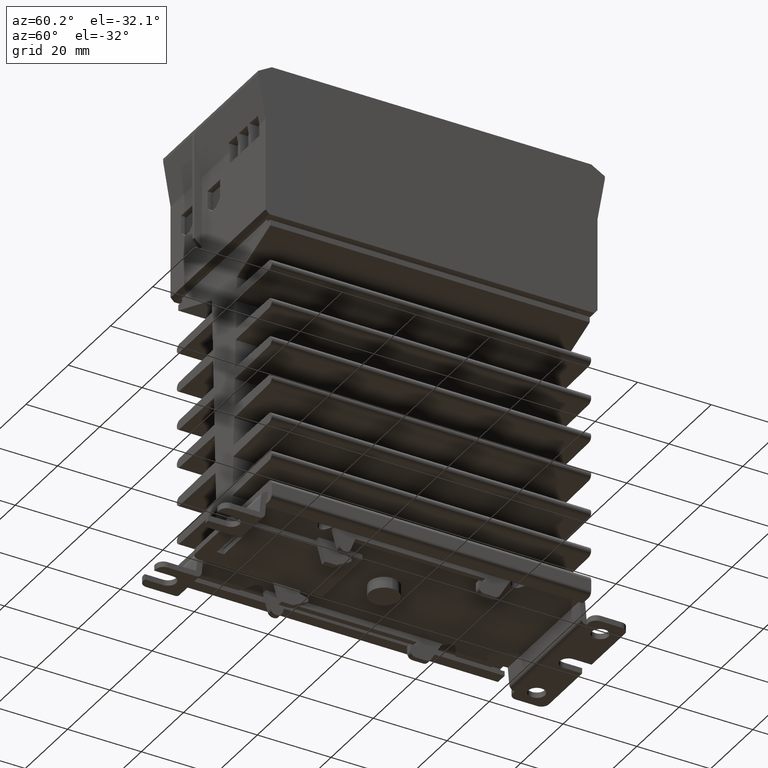
[diagram: clean part render]
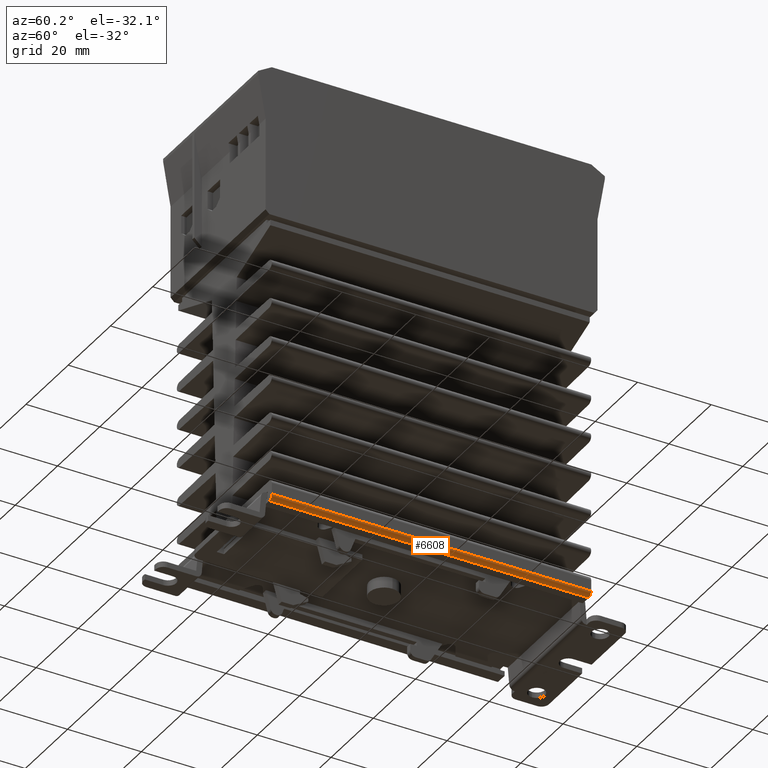
[diagram: same view with one face highlighted and labeled with its STEP entity id]
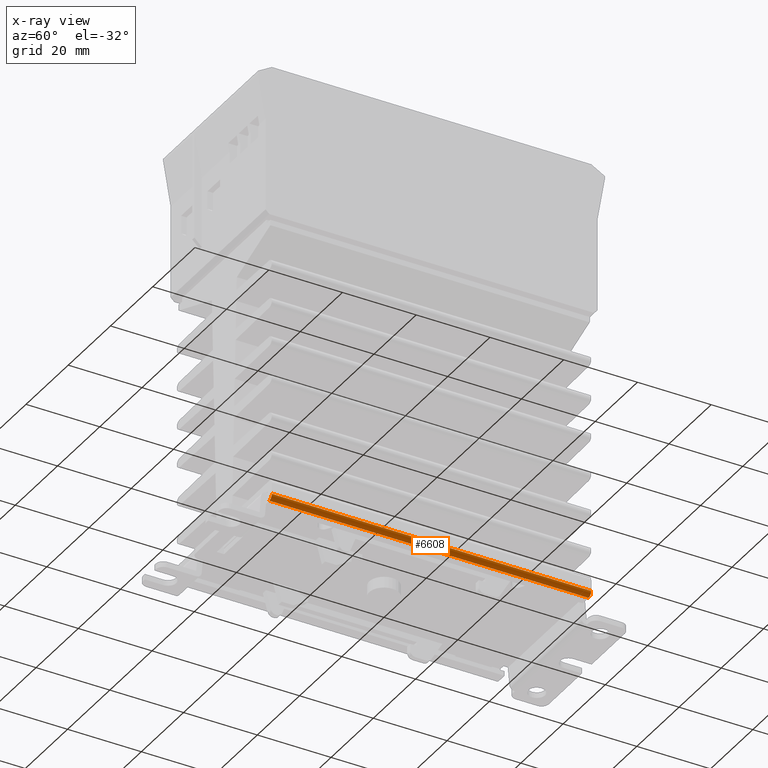
[diagram: x-ray of the same camera — body ghosted, the highlighted face saturated]
A machine part, auxiliary view. The second image highlights one B-rep face of the part: STEP entity #6608.
The next image is the same camera in x-ray: the body ghosted, the highlighted face saturated — about 0% of this face is hidden behind the body in this view.
In plain terms, the highlighted cylindrical surface (edge-blend (fillet) strip) has radius 1.25 mm, axis along (0, 1, 0).
Its self-contained STEP definition (entity closure, byte-faithful):
#17 = CYLINDRICAL_SURFACE ( 'NONE', #4493, 0.04921259842519689481 ) ;
#315 = ORIENTED_EDGE ( 'NONE', *, *, #9833, .F. ) ;
#632 = DIRECTION ( 'NONE',  ( -0.000000000000000000, -1.000000000000000000, -0.000000000000000000 ) ) ;
#1132 = EDGE_CURVE ( 'NONE', #5484, #4830, #7480, .T. ) ;
#2302 = CARTESIAN_POINT ( 'NONE',  ( 0.8366141732283465249, -1.704724409448818978, -3.051181102362204633 ) ) ;
#2485 = DIRECTION ( 'NONE',  ( 0.000000000000000000, 1.000000000000000000, 0.000000000000000000 ) ) ;
#2762 = FACE_OUTER_BOUND ( 'NONE', #11105, .T. ) ;
#2861 = AXIS2_PLACEMENT_3D ( 'NONE', #2302, #632, #6442 ) ;
#3685 = ORIENTED_EDGE ( 'NONE', *, *, #8869, .T. ) ;
#3794 = VECTOR ( 'NONE', #7546, 39.37007874015748143 ) ;
#3924 = DIRECTION ( 'NONE',  ( 0.000000000000000000, 0.000000000000000000, 1.000000000000000000 ) ) ;
#4277 = LINE ( 'NONE', #12117, #9589 ) ;
#4284 = CIRCLE ( 'NONE', #2861, 0.04921259842519689481 ) ;
#4333 = CARTESIAN_POINT ( 'NONE',  ( 0.8858267716535432879, 1.704724409448818978, -3.051181102362204633 ) ) ;
#4493 = AXIS2_PLACEMENT_3D ( 'NONE', #7680, #4809, #3924 ) ;
#4807 = CARTESIAN_POINT ( 'NONE',  ( 0.8366141732283465249, -1.704724409448818978, -3.100393700787401841 ) ) ;
#4809 = DIRECTION ( 'NONE',  ( 0.000000000000000000, 1.000000000000000000, 0.000000000000000000 ) ) ;
#4830 = VERTEX_POINT ( 'NONE', #6757 ) ;
#4979 = DIRECTION ( 'NONE',  ( 0.000000000000000000, 0.000000000000000000, 1.000000000000000000 ) ) ;
#5457 = AXIS2_PLACEMENT_3D ( 'NONE', #9890, #7013, #4979 ) ;
#5484 = VERTEX_POINT ( 'NONE', #4807 ) ;
#6036 = EDGE_CURVE ( 'NONE', #8325, #12481, #4277, .T. ) ;
#6442 = DIRECTION ( 'NONE',  ( 0.000000000000000000, 0.000000000000000000, 1.000000000000000000 ) ) ;
#6608 = ADVANCED_FACE ( 'NONE', ( #2762 ), #17, .T. ) ;
#6757 = CARTESIAN_POINT ( 'NONE',  ( 0.8366141732283465249, 1.704724409448818978, -3.100393700787401841 ) ) ;
#7013 = DIRECTION ( 'NONE',  ( -0.000000000000000000, -1.000000000000000000, -0.000000000000000000 ) ) ;
#7480 = LINE ( 'NONE', #8504, #3794 ) ;
#7546 = DIRECTION ( 'NONE',  ( 0.000000000000000000, 1.000000000000000000, 0.000000000000000000 ) ) ;
#7680 = CARTESIAN_POINT ( 'NONE',  ( 0.8366141732283465249, 0.000000000000000000, -3.051181102362204633 ) ) ;
#8325 = VERTEX_POINT ( 'NONE', #10114 ) ;
#8504 = CARTESIAN_POINT ( 'NONE',  ( 0.8366141732283465249, 0.000000000000000000, -3.100393700787401841 ) ) ;
#8869 = EDGE_CURVE ( 'NONE', #4830, #12481, #9751, .T. ) ;
#9589 = VECTOR ( 'NONE', #2485, 39.37007874015748143 ) ;
#9733 = ORIENTED_EDGE ( 'NONE', *, *, #1132, .T. ) ;
#9751 = CIRCLE ( 'NONE', #5457, 0.04921259842519689481 ) ;
#9833 = EDGE_CURVE ( 'NONE', #5484, #8325, #4284, .T. ) ;
#9890 = CARTESIAN_POINT ( 'NONE',  ( 0.8366141732283465249, 1.704724409448818978, -3.051181102362204633 ) ) ;
#10114 = CARTESIAN_POINT ( 'NONE',  ( 0.8858267716535432879, -1.704724409448818978, -3.051181102362204633 ) ) ;
#11105 = EDGE_LOOP ( 'NONE', ( #315, #9733, #3685, #11657 ) ) ;
#11657 = ORIENTED_EDGE ( 'NONE', *, *, #6036, .F. ) ;
#12117 = CARTESIAN_POINT ( 'NONE',  ( 0.8858267716535432879, 0.000000000000000000, -3.051181102362204633 ) ) ;
#12481 = VERTEX_POINT ( 'NONE', #4333 ) ;